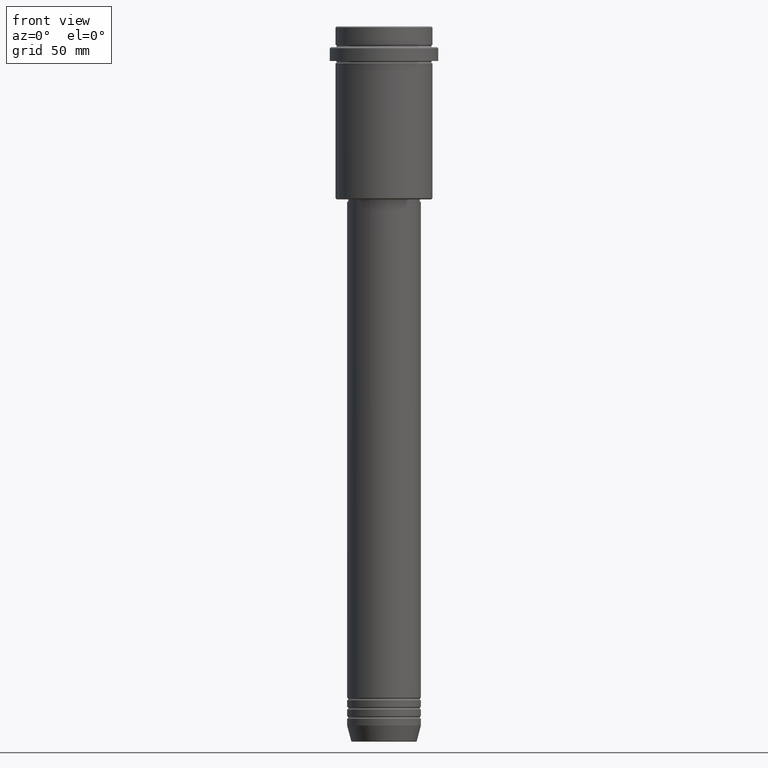
[diagram: clean part render]
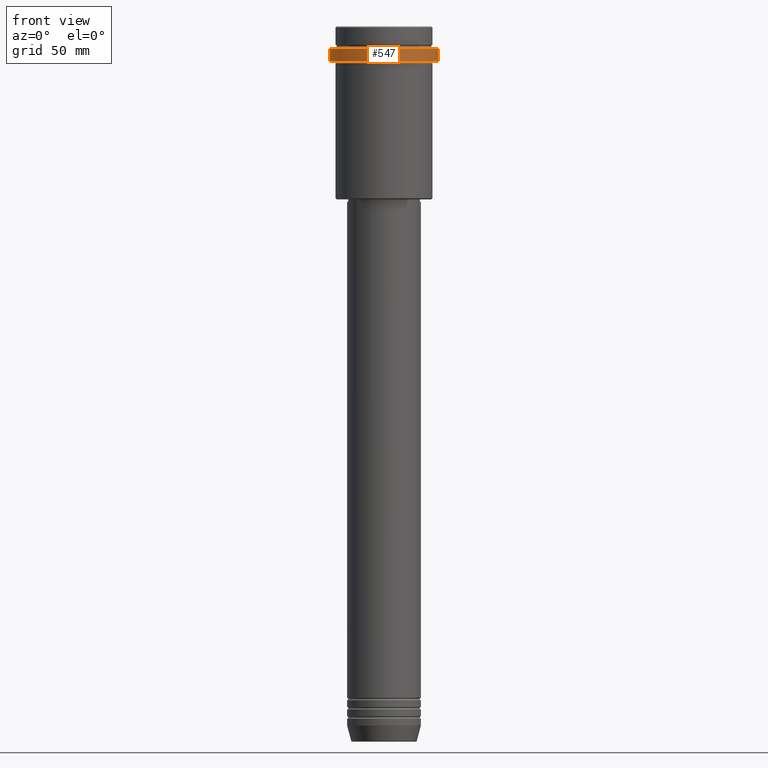
[diagram: same view with one face highlighted and labeled with its STEP entity id]
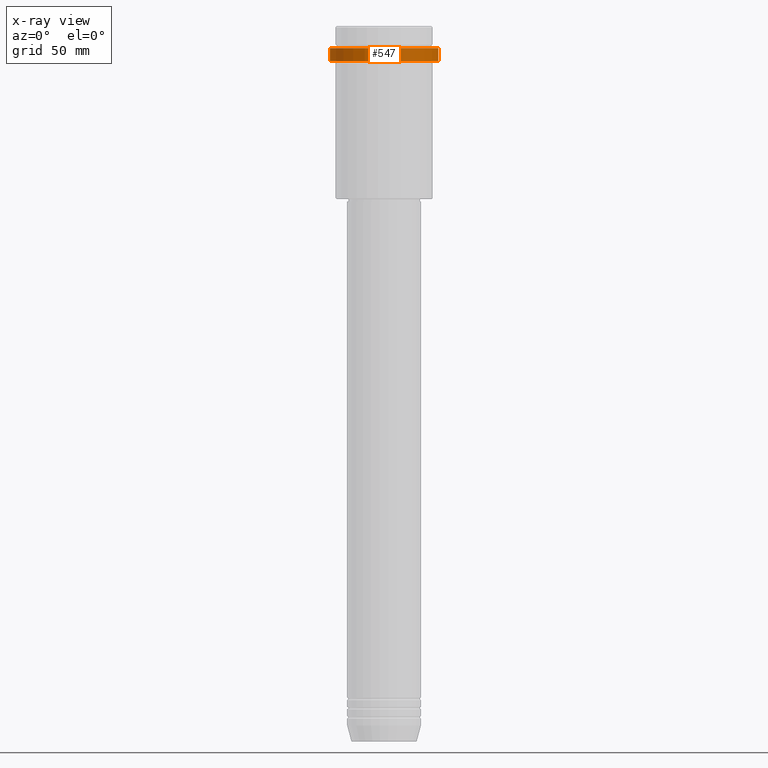
[diagram: x-ray of the same camera — body ghosted, the highlighted face saturated]
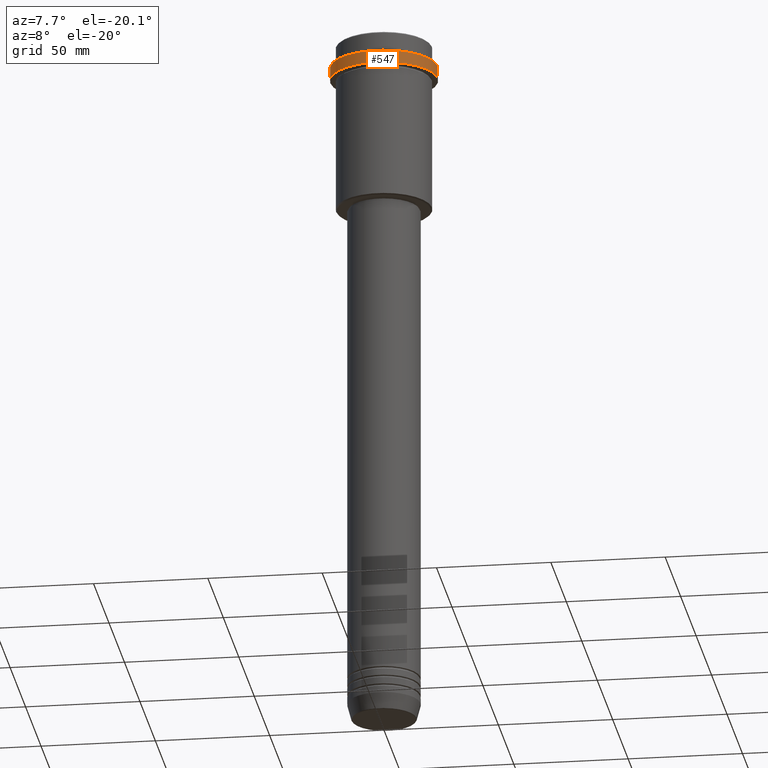
[diagram: same view with one face highlighted and labeled with its STEP entity id]
A machine part, front view. The second image highlights one B-rep face of the part: STEP entity #547.
The next image is the same camera in x-ray: the body ghosted, the highlighted face saturated — about 0% of this face is hidden behind the body in this view.
A second angle (auxiliary view) of the same face is appended — the face is thin or edge-on in the first view.
In plain terms, the highlighted cylindrical surface (partial cylindrical patch) has radius 23.5 mm, axis along (-0, -0, 1).
Its self-contained STEP definition (entity closure, byte-faithful):
#32 = EDGE_CURVE ( 'NONE', #1208, #475, #1384, .T. ) ;
#45 = AXIS2_PLACEMENT_3D ( 'NONE', #380, #1346, #814 ) ;
#106 = LINE ( 'NONE', #863, #459 ) ;
#189 = DIRECTION ( 'NONE',  ( -0.000000000000000000, -0.000000000000000000, 1.000000000000000000 ) ) ;
#196 = ORIENTED_EDGE ( 'NONE', *, *, #32, .T. ) ;
#211 = CARTESIAN_POINT ( 'NONE',  ( 23.50000000000000000, 0.000000000000000000, -9.500000000000001776 ) ) ;
#271 = AXIS2_PLACEMENT_3D ( 'NONE', #518, #189, #1291 ) ;
#323 = LINE ( 'NONE', #747, #990 ) ;
#338 = CIRCLE ( 'NONE', #45, 23.50000000000000000 ) ;
#358 = ORIENTED_EDGE ( 'NONE', *, *, #844, .F. ) ;
#380 = CARTESIAN_POINT ( 'NONE',  ( 0.000000000000000000, 0.000000000000000000, -9.500000000000001776 ) ) ;
#430 = DIRECTION ( 'NONE',  ( -0.000000000000000000, -0.000000000000000000, 1.000000000000000000 ) ) ;
#453 = EDGE_CURVE ( 'NONE', #475, #811, #106, .T. ) ;
#459 = VECTOR ( 'NONE', #1316, 1000.000000000000000 ) ;
#475 = VERTEX_POINT ( 'NONE', #1196 ) ;
#516 = EDGE_CURVE ( 'NONE', #811, #637, #338, .T. ) ;
#518 = CARTESIAN_POINT ( 'NONE',  ( 0.000000000000000000, 0.000000000000000000, -15.00000000000000178 ) ) ;
#547 = ADVANCED_FACE ( 'NONE', ( #1245 ), #601, .T. ) ;
#563 = CARTESIAN_POINT ( 'NONE',  ( 0.000000000000000000, 0.000000000000000000, 0.000000000000000000 ) ) ;
#601 = CYLINDRICAL_SURFACE ( 'NONE', #964, 23.50000000000000000 ) ;
#637 = VERTEX_POINT ( 'NONE', #1383 ) ;
#707 = DIRECTION ( 'NONE',  ( -0.000000000000000000, -0.000000000000000000, 1.000000000000000000 ) ) ;
#747 = CARTESIAN_POINT ( 'NONE',  ( -23.50000000000000000, 2.877919977996280320E-15, 0.000000000000000000 ) ) ;
#811 = VERTEX_POINT ( 'NONE', #211 ) ;
#814 = DIRECTION ( 'NONE',  ( 1.000000000000000000, 0.000000000000000000, 0.000000000000000000 ) ) ;
#844 = EDGE_CURVE ( 'NONE', #1208, #637, #323, .T. ) ;
#863 = CARTESIAN_POINT ( 'NONE',  ( 23.50000000000000000, 0.000000000000000000, 0.000000000000000000 ) ) ;
#951 = CARTESIAN_POINT ( 'NONE',  ( -23.50000000000000711, 2.877919977996281109E-15, -15.00000000000000178 ) ) ;
#964 = AXIS2_PLACEMENT_3D ( 'NONE', #563, #707, #1329 ) ;
#984 = ORIENTED_EDGE ( 'NONE', *, *, #516, .T. ) ;
#990 = VECTOR ( 'NONE', #430, 1000.000000000000000 ) ;
#1131 = EDGE_LOOP ( 'NONE', ( #358, #196, #1357, #984 ) ) ;
#1196 = CARTESIAN_POINT ( 'NONE',  ( 23.50000000000000355, 0.000000000000000000, -15.00000000000000178 ) ) ;
#1208 = VERTEX_POINT ( 'NONE', #951 ) ;
#1245 = FACE_OUTER_BOUND ( 'NONE', #1131, .T. ) ;
#1291 = DIRECTION ( 'NONE',  ( 1.000000000000000000, 0.000000000000000000, 0.000000000000000000 ) ) ;
#1316 = DIRECTION ( 'NONE',  ( -0.000000000000000000, -0.000000000000000000, 1.000000000000000000 ) ) ;
#1329 = DIRECTION ( 'NONE',  ( 1.000000000000000000, 0.000000000000000000, 0.000000000000000000 ) ) ;
#1346 = DIRECTION ( 'NONE',  ( 0.000000000000000000, 0.000000000000000000, -1.000000000000000000 ) ) ;
#1357 = ORIENTED_EDGE ( 'NONE', *, *, #453, .T. ) ;
#1383 = CARTESIAN_POINT ( 'NONE',  ( -23.50000000000000000, 2.877919977996280320E-15, -9.500000000000001776 ) ) ;
#1384 = CIRCLE ( 'NONE', #271, 23.50000000000000355 ) ;